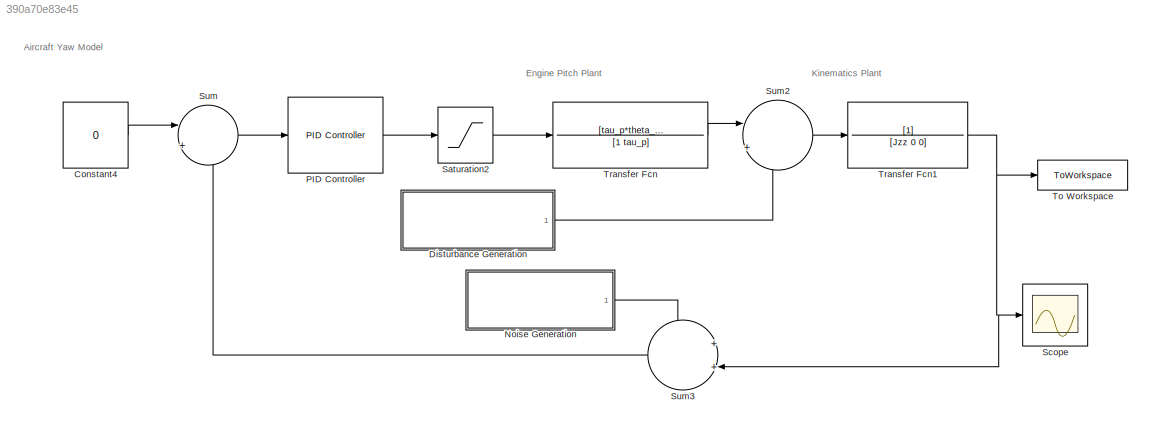
MODEL slx_390a70e83e45
KIND model
CONFIG AbsTol = auto
CONFIG EnableMultiTasking = off
CONFIG FixedStep = auto
CONFIG MaxStep = auto
CONFIG MinStep = auto
CONFIG RelTol = 1e-3
CONFIG SampleTimeConstraint = Unconstrained
CONFIG SolverName = VariableStepAuto
CONFIG StartTime = 0.0
CONFIG StopTime = 30
BLOCK [Constant] Constant4
  Value = 0
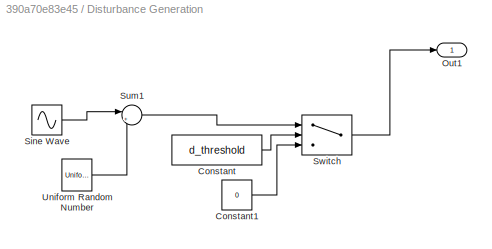
BLOCK [SubSystem] Disturbance Generation
  Ports = [0, 1]
  RequestExecContextInheritance = off
BLOCK [Constant] Disturbance Generation/Constant
  Value = d_threshold
BLOCK [Constant] Disturbance Generation/Constant1
  Value = 0
BLOCK [Outport] Disturbance Generation/Out1
BLOCK [Sin] Disturbance Generation/Sine Wave
  Amplitude = Ad
  Frequency = f*2*pi
  Ports = [0, 1]
  SampleTime = 0
BLOCK [Sum] Disturbance Generation/Sum1
  Inputs = |++
  Ports = [2, 1]
BLOCK [Switch] Disturbance Generation/Switch
  Criteria = u2 > Threshold
  InputSameDT = off
  SaturateOnIntegerOverflow = off
BLOCK [UniformRandomNumber] Disturbance Generation/Uniform Random Number
  SampleTime = 0.1
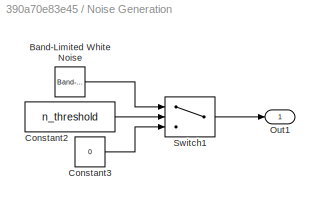
BLOCK [SubSystem] Noise Generation
  Ports = [0, 1]
  RequestExecContextInheritance = off
BLOCK [Reference] Noise Generation/Band-Limited White Noise  REF=simulink/Sources/Band-Limited
White Noise
  Ports = [0, 1]
  SourceBlock = simulink/Sources/Band-Limited\nWhite Noise
  SourceProductBaseCode = SL
  SourceType = Band-Limited White Noise.
BLOCK [Constant] Noise Generation/Constant2
  Value = n_threshold
BLOCK [Constant] Noise Generation/Constant3
  Value = 0
BLOCK [Outport] Noise Generation/Out1
BLOCK [Switch] Noise Generation/Switch1
  Criteria = u2 > Threshold
  InputSameDT = off
  SaturateOnIntegerOverflow = off
BLOCK [Reference] PID Controller  REF=pid_lib/PID Controller
  Ports = [1, 1]
  SourceBlock = pid_lib/PID Controller
  SourceProductBaseCode = SL
  SourceType = PID 1dof
BLOCK [Saturate] Saturation2
  LowerLimit = -1
  UpperLimit = 1
BLOCK [Scope] Scope
  Floating = off
  NumInputPorts = 1
  Ports = [1]
  ScopeSpecificationString = Simulink.scopes.TimeScopeBlockCfg('CurrentConfiguration', extmgr.ConfigurationSet(extmgr.Configuration('Core','General UI',true),extmgr.Configuration('Core','Source UI',true),extmgr.Configuration('Sources','WiredSimulink',true),extmgr.Configuration('Visuals','Time Domain',true,'SerializedDisplays',{struct('MinYLimReal','-1.25242','MaxYLimReal','2.78662','YLabelReal','','MinYLimMag','0.00000','MaxY...<+1333ch>
BLOCK [Sum] Sum
  Inputs = |+-
  Ports = [2, 1]
BLOCK [Sum] Sum2
  Inputs = |++
  Ports = [2, 1]
BLOCK [Sum] Sum3
  Inputs = ++|
  Ports = [2, 1]
BLOCK [ToWorkspace] To Workspace
  FixptAsFi = on
  MaxDataPoints = inf
  Ports = [1]
  SampleTime = -1
  SaveFormat = Structure With Time
  VariableName = res
BLOCK [TransferFcn] Transfer Fcn
  Denominator = [1 tau_p]
  Numerator = [tau_p*theta_max*l*F]
BLOCK [TransferFcn] Transfer Fcn1
  Denominator = [Jzz 0 0]
ANNOTATION (root): Engine Pitch Plant
ANNOTATION (root): Kinematics Plant
ANNOTATION (root): Aircraft Yaw Model
LINE Constant4:1 -> Sum:1
LINE Disturbance Generation/Constant1:1 -> Disturbance Generation/Switch:3
LINE Disturbance Generation/Constant:1 -> Disturbance Generation/Switch:2
LINE Disturbance Generation/Sine Wave:1 -> Disturbance Generation/Sum1:1
LINE Disturbance Generation/Sum1:1 -> Disturbance Generation/Switch:1
LINE Disturbance Generation/Switch:1 -> Disturbance Generation/Out1:1
LINE Disturbance Generation/Uniform Random Number:1 -> Disturbance Generation/Sum1:2
LINE Disturbance Generation:1 -> Sum2:2
LINE Noise Generation/Band-Limited White Noise:1 -> Noise Generation/Switch1:1
LINE Noise Generation/Constant2:1 -> Noise Generation/Switch1:2
LINE Noise Generation/Constant3:1 -> Noise Generation/Switch1:3
LINE Noise Generation/Switch1:1 -> Noise Generation/Out1:1
LINE Noise Generation:1 -> Sum3:1
LINE PID Controller:1 -> Saturation2:1
LINE Saturation2:1 -> Transfer Fcn:1
LINE Sum2:1 -> Transfer Fcn1:1
LINE Sum3:1 -> Sum:2
LINE Sum:1 -> PID Controller:1
NET Transfer Fcn1:1 -> Scope:1, Sum3:2, To Workspace:1
LINE Transfer Fcn:1 -> Sum2:1
note: NET lines group one-source signal fan-out (src -> all destinations, sorted); 1:1 wires keep LINE
